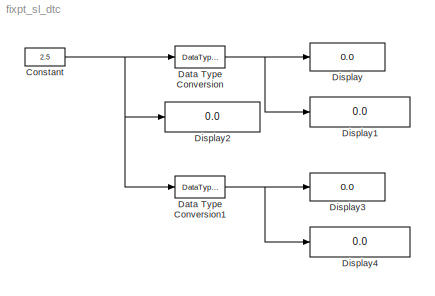
MODEL fixpt_sl_dtc
KIND model
BLOCK [Constant] Constant
  AttributesFormatString = DataType = %<OutDataTypeStr>
  OutDataTypeStr = fixdt(1,8,1)
  SID = 1
  SampleTime = -1
  Value = 2.5
BLOCK [DataTypeConversion] Data Type Conversion
  AttributesFormatString = DataType = %<OutDataTypeStr>
  OutDataTypeStr = int8
  RndMeth = Nearest
  SID = 2
  SaturateOnIntegerOverflow = off
BLOCK [DataTypeConversion] Data Type Conversion1
  AttributesFormatString = DataType = %<OutDataTypeStr>
  ConvertRealWorld = Stored Integer (SI)
  OutDataTypeStr = int8
  RndMeth = Nearest
  SID = 3
  SaturateOnIntegerOverflow = off
BLOCK [Display] Display
  AttributesFormatString = Format = %<Format>
  Decimation = 1
  Lockdown = off
  Ports = [1]
  SID = 4
BLOCK [Display] Display1
  AttributesFormatString = Format = %<Format>
  Decimation = 1
  Format = binary (Stored Integer)
  Lockdown = off
  Ports = [1]
  SID = 5
BLOCK [Display] Display2
  AttributesFormatString = Format = %<Format>
  Decimation = 1
  Format = binary (Stored Integer)
  Lockdown = off
  Ports = [1]
  SID = 6
BLOCK [Display] Display3
  AttributesFormatString = Format = %<Format>
  Decimation = 1
  Lockdown = off
  Ports = [1]
  SID = 7
BLOCK [Display] Display4
  AttributesFormatString = Format = %<Format>
  Decimation = 1
  Format = binary (Stored Integer)
  Lockdown = off
  Ports = [1]
  SID = 8
NET Constant:1 -> Data Type Conversion1:1, Data Type Conversion:1, Display2:1
NET Data Type Conversion1:1 -> Display3:1, Display4:1
NET Data Type Conversion:1 -> Display1:1, Display:1
note: NET lines group one-source signal fan-out (src -> all destinations, sorted); 1:1 wires keep LINE
